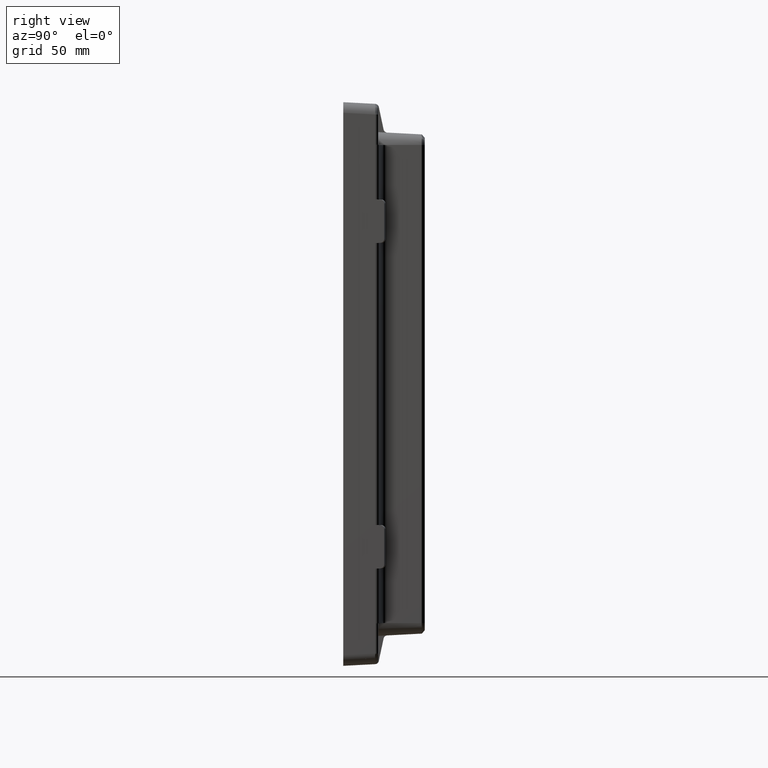
[diagram: clean part render]
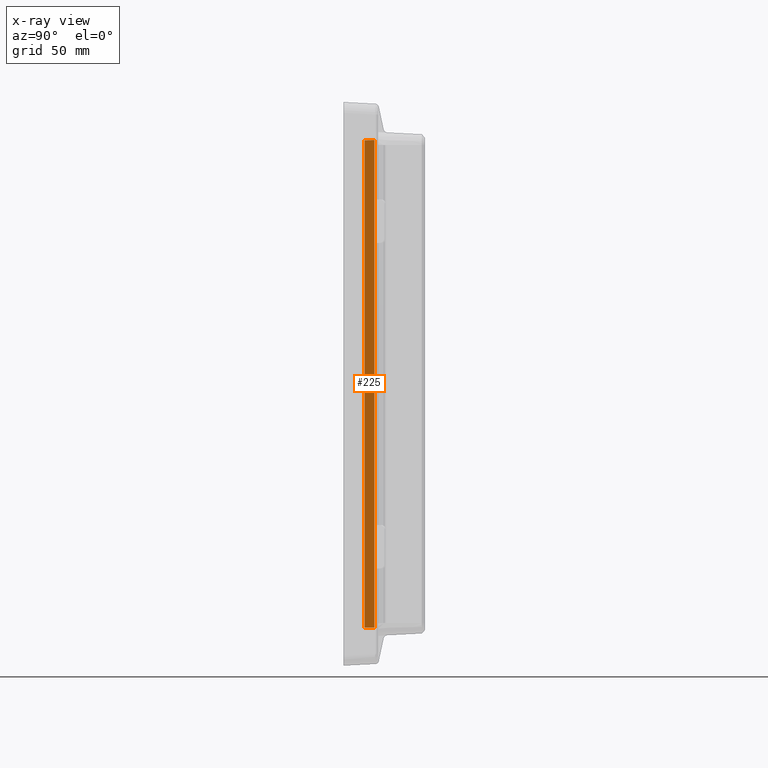
[diagram: x-ray — body ghosted, one internal face saturated and labeled with its STEP entity id]
A machine part, right view, then the same camera in x-ray: the body is ghosted and one INTERNAL B-rep face — a face not visible from any outside direction — is saturated and labeled: STEP entity #225.
In plain terms, the highlighted planar face has unit normal (-0.9994, -0.0349, 0).
Its self-contained STEP definition (entity closure, byte-faithful):
#72 = DIRECTION ( 'NONE',  ( 0.03489949670250104600, -0.9993908270190956500, 0.0000000000000000000 ) ) ;
#225 = ADVANCED_FACE ( 'NONE', ( #4286 ), #6337, .T. ) ;
#288 = LINE ( 'NONE', #4418, #1510 ) ;
#847 = DIRECTION ( 'NONE',  ( 0.03487934512674303900, -0.9988137613916394700, 0.03397795370846536800 ) ) ;
#1109 = LINE ( 'NONE', #4389, #1832 ) ;
#1477 = VECTOR ( 'NONE', #6159, 1000.000000000000000 ) ;
#1510 = VECTOR ( 'NONE', #847, 1000.000000000000100 ) ;
#1638 = CARTESIAN_POINT ( 'NONE',  ( -110.0698050535101400, 3.000000000000000000, -125.6917712295630500 ) ) ;
#1694 = EDGE_CURVE ( 'NONE', #3547, #3065, #5874, .T. ) ;
#1832 = VECTOR ( 'NONE', #6466, 1000.000000000000000 ) ;
#1989 = CARTESIAN_POINT ( 'NONE',  ( -110.0698050535101400, 3.000000000000000000, 125.0000000000000000 ) ) ;
#2104 = EDGE_LOOP ( 'NONE', ( #2855, #3769, #2422, #2933 ) ) ;
#2123 = CARTESIAN_POINT ( 'NONE',  ( -110.2465284886338600, 8.060697049229684600, 125.8639275781418000 ) ) ;
#2138 = DIRECTION ( 'NONE',  ( -0.03487934512674303900, 0.9988137613916394700, 0.03397795370846536800 ) ) ;
#2239 = VERTEX_POINT ( 'NONE', #5545 ) ;
#2253 = DIRECTION ( 'NONE',  ( -0.9993908270190957600, -0.03489949670250105200, 0.0000000000000000000 ) ) ;
#2422 = ORIENTED_EDGE ( 'NONE', *, *, #4583, .F. ) ;
#2561 = VERTEX_POINT ( 'NONE', #1638 ) ;
#2630 = CARTESIAN_POINT ( 'NONE',  ( -110.0698050535101400, 3.000000000000000000, 125.6917712295631600 ) ) ;
#2754 = CARTESIAN_POINT ( 'NONE',  ( -109.9650427450348900, 3.469446951953614200E-015, 125.0000000000000000 ) ) ;
#2855 = ORIENTED_EDGE ( 'NONE', *, *, #4062, .T. ) ;
#2901 = EDGE_CURVE ( 'NONE', #2239, #2561, #288, .T. ) ;
#2933 = ORIENTED_EDGE ( 'NONE', *, *, #2901, .T. ) ;
#3065 = VERTEX_POINT ( 'NONE', #2123 ) ;
#3547 = VERTEX_POINT ( 'NONE', #2630 ) ;
#3664 = CARTESIAN_POINT ( 'NONE',  ( -109.9643438552709700, -0.02001358429642844900, 125.5890354786828300 ) ) ;
#3769 = ORIENTED_EDGE ( 'NONE', *, *, #1694, .T. ) ;
#4062 = EDGE_CURVE ( 'NONE', #2561, #3547, #4392, .T. ) ;
#4286 = FACE_OUTER_BOUND ( 'NONE', #2104, .T. ) ;
#4389 = CARTESIAN_POINT ( 'NONE',  ( -110.2465284886338600, 8.060697049229684600, 125.0000000000000000 ) ) ;
#4392 = LINE ( 'NONE', #1989, #1477 ) ;
#4418 = CARTESIAN_POINT ( 'NONE',  ( -109.6680616617464600, -8.504425521282252400, -125.3004101441292300 ) ) ;
#4583 = EDGE_CURVE ( 'NONE', #2239, #3065, #1109, .T. ) ;
#5315 = AXIS2_PLACEMENT_3D ( 'NONE', #2754, #2253, #72 ) ;
#5545 = CARTESIAN_POINT ( 'NONE',  ( -110.2465284886338600, 8.060697049229697000, -125.8639275781418000 ) ) ;
#5874 = LINE ( 'NONE', #3664, #6042 ) ;
#6042 = VECTOR ( 'NONE', #2138, 1000.000000000000100 ) ;
#6159 = DIRECTION ( 'NONE',  ( 0.0000000000000000000, 0.0000000000000000000, 1.000000000000000000 ) ) ;
#6337 = PLANE ( 'NONE',  #5315 ) ;
#6466 = DIRECTION ( 'NONE',  ( 1.769340389259236400E-018, -5.066727953051986800E-017, 1.000000000000000000 ) ) ;